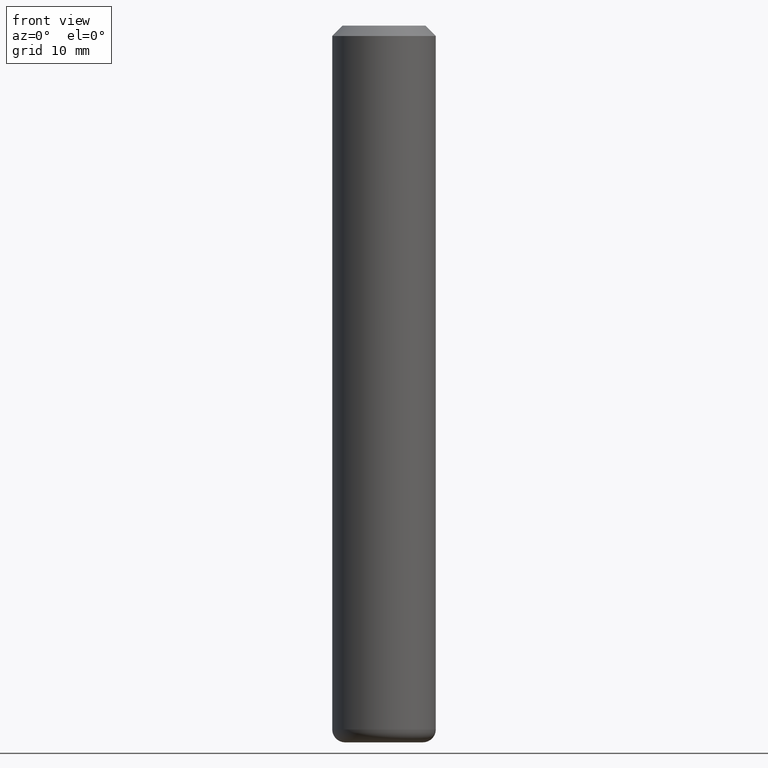
[diagram: clean part render]
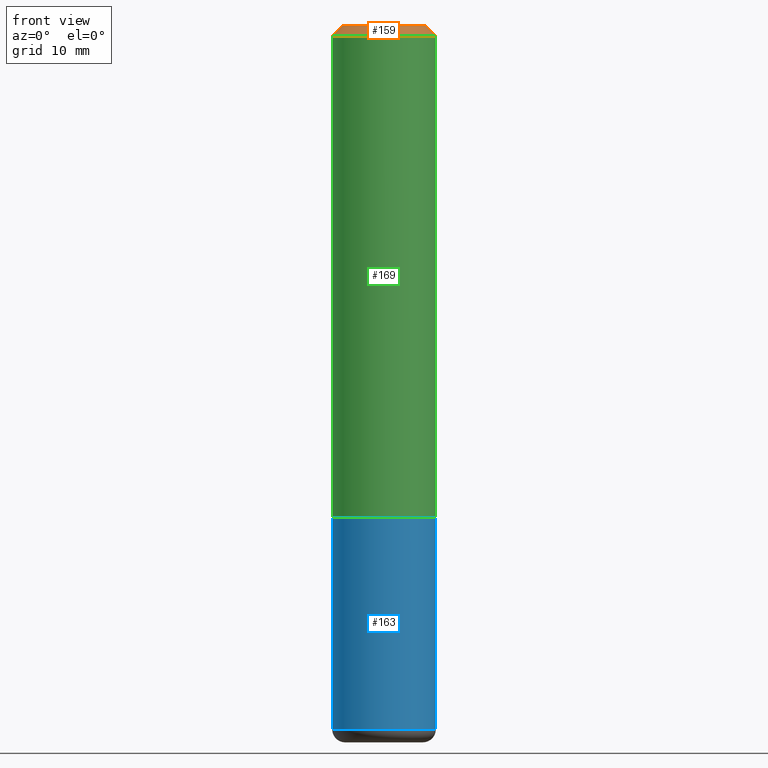
[diagram: same view with three faces highlighted in distinct colors, each labeled with its STEP entity id]
A machine part, front view with three faces highlighted in distinct colors.
Their STEP definitions:

[orange] entity #159 — the highlighted conical surface has half-angle 45 deg.
#11 = DIRECTION ( 'NONE',  ( -1.000000000000000000, 0.0000000000000000000, 6.982962677686266711E-15 ) ) ;
#15 = EDGE_LOOP ( 'NONE', ( #54 ) ) ;
#29 = DIRECTION ( 'NONE',  ( 1.000000000000000000, 0.0000000000000000000, -6.982962677686266711E-15 ) ) ;
#36 = DIRECTION ( 'NONE',  ( -6.982962677686266711E-15, 0.0000000000000000000, -1.000000000000000000 ) ) ;
#54 = ORIENTED_EDGE ( 'NONE', *, *, #150, .F. ) ;
#67 = CARTESIAN_POINT ( 'NONE',  ( 4.799999999999996270, 0.0000000000000000000, -3.351822085289405497E-14 ) ) ;
#74 = DIRECTION ( 'NONE',  ( 6.982962677686266711E-15, 0.0000000000000000000, 1.000000000000000000 ) ) ;
#91 = CARTESIAN_POINT ( 'NONE',  ( -8.379555213223567384E-15, 0.0000000000000000000, -1.200000000000006617 ) ) ;
#93 = AXIS2_PLACEMENT_3D ( 'NONE', #91, #74, #222 ) ;
#104 = FACE_OUTER_BOUND ( 'NONE', #215, .T. ) ;
#125 = CARTESIAN_POINT ( 'NONE',  ( 0.0000000000000000000, 0.0000000000000000000, 0.0000000000000000000 ) ) ;
#126 = DIRECTION ( 'NONE',  ( 6.982962677686266711E-15, 0.0000000000000000000, 1.000000000000000000 ) ) ;
#129 = CIRCLE ( 'NONE', #141, 4.799999999999996270 ) ;
#134 = CARTESIAN_POINT ( 'NONE',  ( 0.0000000000000000000, 0.0000000000000000000, 0.0000000000000000000 ) ) ;
#141 = AXIS2_PLACEMENT_3D ( 'NONE', #125, #126, #29 ) ;
#144 = ORIENTED_EDGE ( 'NONE', *, *, #172, .T. ) ;
#150 = EDGE_CURVE ( 'NONE', #161, #161, #129, .T. ) ;
#159 = ADVANCED_FACE ( 'NONE', ( #104, #207 ), #166, .T. ) ;
#161 = VERTEX_POINT ( 'NONE', #67 ) ;
#166 = CONICAL_SURFACE ( 'NONE', #203, 4.799999999999996270, 0.7853981633974472798 ) ;
#172 = EDGE_CURVE ( 'NONE', #212, #212, #173, .T. ) ;
#173 = CIRCLE ( 'NONE', #93, 6.000000000000000000 ) ;
#202 = CARTESIAN_POINT ( 'NONE',  ( 5.999999999999991118, 0.0000000000000000000, -1.200000000000048361 ) ) ;
#203 = AXIS2_PLACEMENT_3D ( 'NONE', #134, #36, #11 ) ;
#207 = FACE_BOUND ( 'NONE', #15, .T. ) ;
#212 = VERTEX_POINT ( 'NONE', #202 ) ;
#215 = EDGE_LOOP ( 'NONE', ( #144 ) ) ;
#222 = DIRECTION ( 'NONE',  ( 1.000000000000000000, 0.0000000000000000000, -6.975033976323412122E-15 ) ) ;

[blue] entity #163 — the highlighted cylindrical surface (bore or boss wall) has radius 6 mm, axis along (0, 0, 1).
#3 = AXIS2_PLACEMENT_3D ( 'NONE', #160, #59, #6 ) ;
#6 = DIRECTION ( 'NONE',  ( -1.000000000000000000, 0.0000000000000000000, 6.938893903907212600E-15 ) ) ;
#8 = CARTESIAN_POINT ( 'NONE',  ( -5.795859022479601622E-13, 0.0000000000000000000, -83.00000000000000000 ) ) ;
#37 = EDGE_LOOP ( 'NONE', ( #190 ) ) ;
#39 = CIRCLE ( 'NONE', #223, 6.000000000000015099 ) ;
#44 = AXIS2_PLACEMENT_3D ( 'NONE', #8, #128, #109 ) ;
#48 = CYLINDRICAL_SURFACE ( 'NONE', #44, 6.000000000000015099 ) ;
#59 = DIRECTION ( 'NONE',  ( -7.970561502160112194E-15, 0.0000000000000000000, -1.000000000000000000 ) ) ;
#60 = DIRECTION ( 'NONE',  ( -6.982962677686266711E-15, -0.0000000000000000000, -1.000000000000000000 ) ) ;
#64 = EDGE_LOOP ( 'NONE', ( #148 ) ) ;
#69 = FACE_OUTER_BOUND ( 'NONE', #64, .T. ) ;
#85 = FACE_OUTER_BOUND ( 'NONE', #37, .T. ) ;
#87 = VERTEX_POINT ( 'NONE', #146 ) ;
#105 = CARTESIAN_POINT ( 'NONE',  ( -6.000000000000606626, 0.0000000000000000000, -81.49999999999995737 ) ) ;
#109 = DIRECTION ( 'NONE',  ( 1.000000000000000000, 0.0000000000000000000, -6.938893903907211023E-15 ) ) ;
#110 = EDGE_CURVE ( 'NONE', #157, #157, #188, .T. ) ;
#128 = DIRECTION ( 'NONE',  ( 6.982962677686266711E-15, 0.0000000000000000000, 1.000000000000000000 ) ) ;
#146 = CARTESIAN_POINT ( 'NONE',  ( 5.999999999999616307, 0.0000000000000000000, -57.00000000000004974 ) ) ;
#148 = ORIENTED_EDGE ( 'NONE', *, *, #149, .T. ) ;
#149 = EDGE_CURVE ( 'NONE', #87, #87, #39, .T. ) ;
#157 = VERTEX_POINT ( 'NONE', #105 ) ;
#160 = CARTESIAN_POINT ( 'NONE',  ( -5.933076294310400002E-13, 0.0000000000000000000, -81.50000000000000000 ) ) ;
#163 = ADVANCED_FACE ( 'NONE', ( #85, #69 ), #48, .T. ) ;
#188 = CIRCLE ( 'NONE', #3, 6.000000000000013323 ) ;
#190 = ORIENTED_EDGE ( 'NONE', *, *, #110, .F. ) ;
#195 = DIRECTION ( 'NONE',  ( 1.000000000000000000, 0.0000000000000000000, -6.938893903907211023E-15 ) ) ;
#211 = CARTESIAN_POINT ( 'NONE',  ( -3.980288726281172782E-13, 0.0000000000000000000, -57.00000000000000711 ) ) ;
#223 = AXIS2_PLACEMENT_3D ( 'NONE', #211, #60, #195 ) ;

[green] entity #169 — the highlighted cylindrical surface (bore or boss wall) has radius 6 mm, axis along (0, 0, 1).
#19 = AXIS2_PLACEMENT_3D ( 'NONE', #106, #32, #108 ) ;
#32 = DIRECTION ( 'NONE',  ( -6.982962677686266711E-15, -0.0000000000000000000, -1.000000000000000000 ) ) ;
#33 = FACE_OUTER_BOUND ( 'NONE', #45, .T. ) ;
#35 = CARTESIAN_POINT ( 'NONE',  ( -5.795859022479601622E-13, 0.0000000000000000000, -83.00000000000000000 ) ) ;
#45 = EDGE_LOOP ( 'NONE', ( #119 ) ) ;
#50 = FACE_OUTER_BOUND ( 'NONE', #154, .T. ) ;
#52 = DIRECTION ( 'NONE',  ( 6.982962677686266711E-15, 0.0000000000000000000, 1.000000000000000000 ) ) ;
#68 = EDGE_CURVE ( 'NONE', #216, #216, #133, .T. ) ;
#74 = DIRECTION ( 'NONE',  ( 6.982962677686266711E-15, 0.0000000000000000000, 1.000000000000000000 ) ) ;
#76 = DIRECTION ( 'NONE',  ( 1.000000000000000000, 0.0000000000000000000, -6.938893903907211023E-15 ) ) ;
#91 = CARTESIAN_POINT ( 'NONE',  ( -8.379555213223567384E-15, 0.0000000000000000000, -1.200000000000006617 ) ) ;
#93 = AXIS2_PLACEMENT_3D ( 'NONE', #91, #74, #222 ) ;
#106 = CARTESIAN_POINT ( 'NONE',  ( -3.980288726281172782E-13, 0.0000000000000000000, -57.00000000000000711 ) ) ;
#108 = DIRECTION ( 'NONE',  ( 1.000000000000000000, 0.0000000000000000000, -6.938893903907211023E-15 ) ) ;
#119 = ORIENTED_EDGE ( 'NONE', *, *, #172, .F. ) ;
#123 = AXIS2_PLACEMENT_3D ( 'NONE', #35, #52, #76 ) ;
#133 = CIRCLE ( 'NONE', #19, 6.000000000000015099 ) ;
#154 = EDGE_LOOP ( 'NONE', ( #214 ) ) ;
#169 = ADVANCED_FACE ( 'NONE', ( #50, #33 ), #220, .T. ) ;
#172 = EDGE_CURVE ( 'NONE', #212, #212, #173, .T. ) ;
#173 = CIRCLE ( 'NONE', #93, 6.000000000000000000 ) ;
#174 = CARTESIAN_POINT ( 'NONE',  ( 5.999999999999616307, 0.0000000000000000000, -57.00000000000004974 ) ) ;
#202 = CARTESIAN_POINT ( 'NONE',  ( 5.999999999999991118, 0.0000000000000000000, -1.200000000000048361 ) ) ;
#212 = VERTEX_POINT ( 'NONE', #202 ) ;
#214 = ORIENTED_EDGE ( 'NONE', *, *, #68, .F. ) ;
#216 = VERTEX_POINT ( 'NONE', #174 ) ;
#220 = CYLINDRICAL_SURFACE ( 'NONE', #123, 6.000000000000015099 ) ;
#222 = DIRECTION ( 'NONE',  ( 1.000000000000000000, 0.0000000000000000000, -6.975033976323412122E-15 ) ) ;